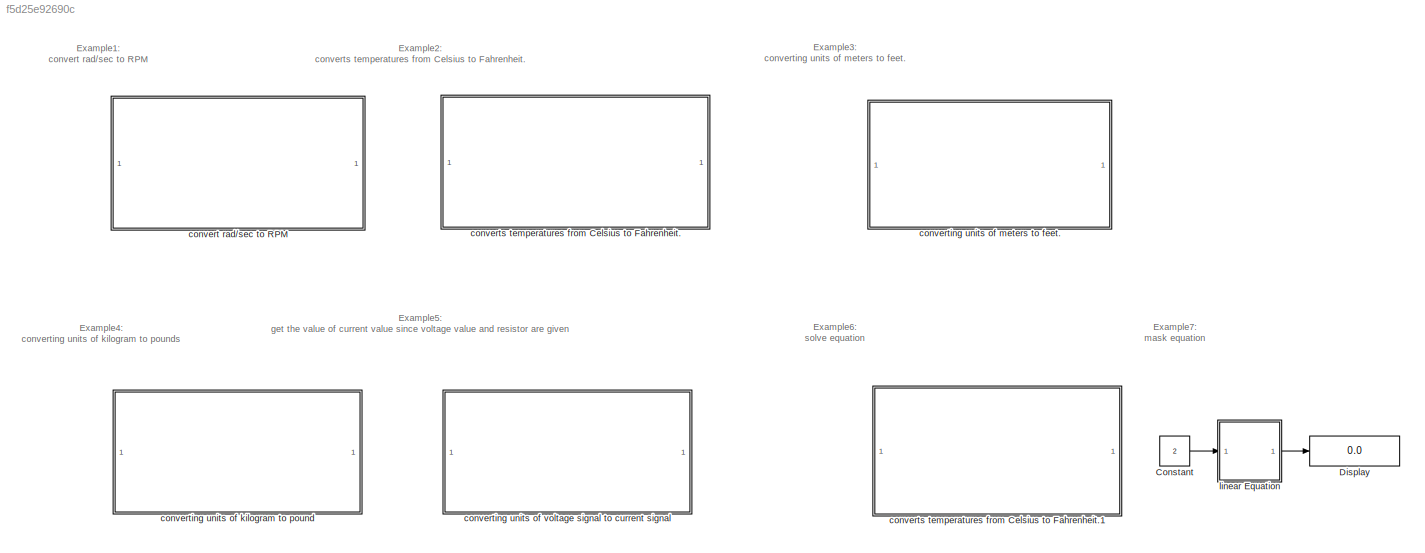
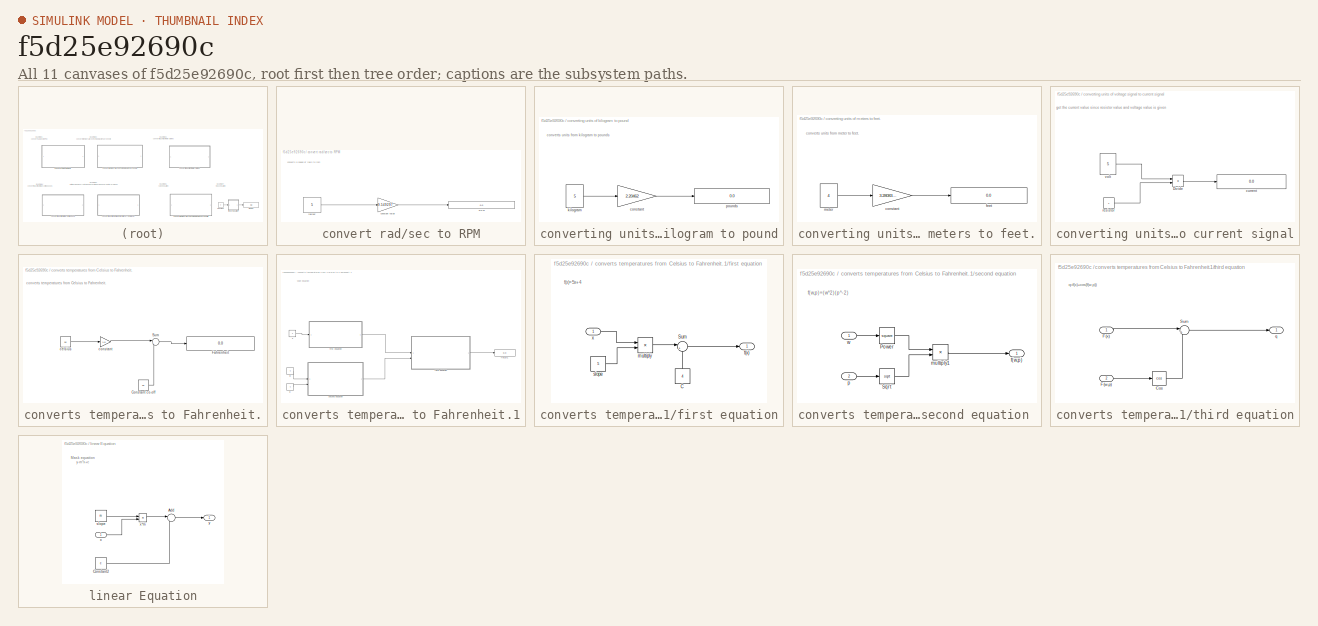
[diagram: thumbnail index - all 11 canvases of the model, root first then tree order]
MODEL slx_f5d25e92690c
KIND model
CONFIG AbsTol = auto
CONFIG EnableMultiTasking = off
CONFIG FixedStep = auto
CONFIG MaxStep = auto
CONFIG MinStep = auto
CONFIG RelTol = 1e-3
CONFIG SampleTimeConstraint = Unconstrained
CONFIG SolverName = VariableStepAuto
CONFIG StartTime = 0.0
CONFIG StopTime = 10.0
BLOCK [Constant] Constant
  Value = 2
BLOCK [Display] Display
  Decimation = 1
BLOCK [SubSystem] convert rad//sec to RPM
BLOCK [Display] convert rad//sec to RPM/RPM
  Decimation = 5
  Format = long
BLOCK [Gain] convert rad//sec to RPM/constant value
  Gain = 9.549297
BLOCK [Constant] convert rad//sec to RPM/rad//sec
  Value = 5
BLOCK [SubSystem] converting units of kilogram to pound
BLOCK [Gain] converting units of kilogram to pound/constant 
  Gain = 2.20462
BLOCK [Constant] converting units of kilogram to pound/kilogram
  Value = 5
BLOCK [Display] converting units of kilogram to pound/pounds
  Decimation = 1
  Format = long
BLOCK [SubSystem] converting units of meters to feet.
BLOCK [Gain] converting units of meters to feet./constant 
  Gain = 3.280839895
BLOCK [Display] converting units of meters to feet./feet
  Decimation = 1
  Format = long
BLOCK [Constant] converting units of meters to feet./meter
  Value = 4
BLOCK [SubSystem] converting units of voltage signal to current signal
BLOCK [Product] converting units of voltage signal to current signal/Divide
  Inputs = */
BLOCK [Display] converting units of voltage signal to current signal/current 
  Decimation = 1
  Format = long
BLOCK [Constant] converting units of voltage signal to current signal/resistor
BLOCK [Constant] converting units of voltage signal to current signal/volt
  Value = 5
BLOCK [SubSystem] converts temperatures from Celsius to Fahrenheit.
BLOCK [Constant] converts temperatures from Celsius to Fahrenheit./Constant co-off
  Value = 32
BLOCK [Display] converts temperatures from Celsius to Fahrenheit./Fahrenheit
  Decimation = 1
  Format = long
BLOCK [Sum] converts temperatures from Celsius to Fahrenheit./Sum
  Inputs = |++
BLOCK [Constant] converts temperatures from Celsius to Fahrenheit./celsius
  Value = 56
BLOCK [Gain] converts temperatures from Celsius to Fahrenheit./constant 
  Gain = 1.8
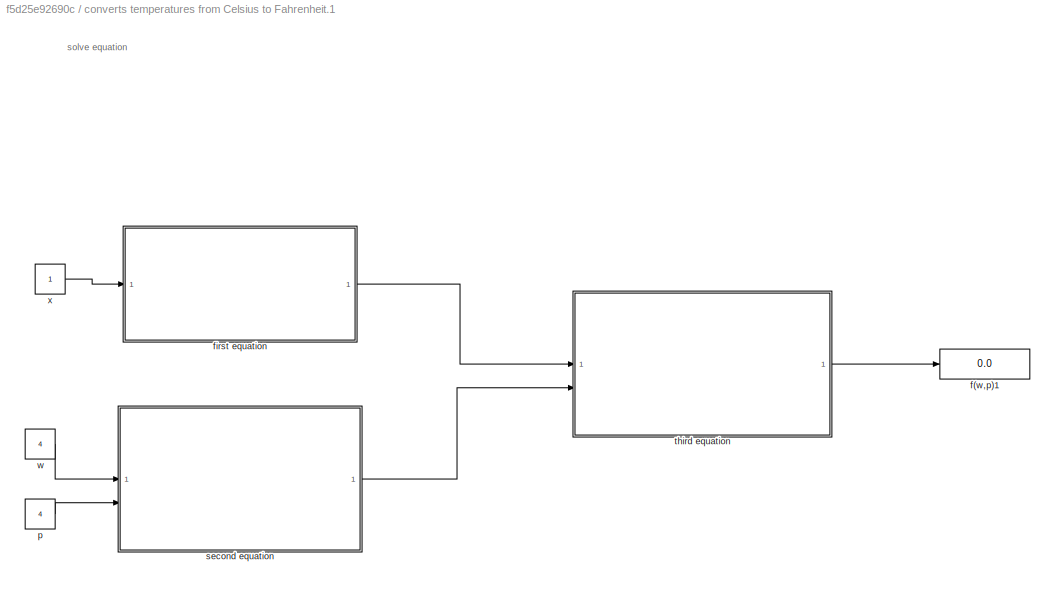
BLOCK [SubSystem] converts temperatures from Celsius to Fahrenheit.1
BLOCK [Display] converts temperatures from Celsius to Fahrenheit.1/f(w,p)1
  Decimation = 1
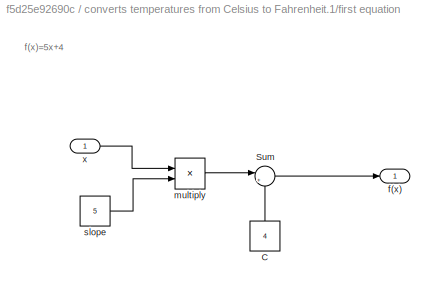
BLOCK [SubSystem] converts temperatures from Celsius to Fahrenheit.1/first equation
BLOCK [Constant] converts temperatures from Celsius to Fahrenheit.1/first equation/C
  NameLocation = right
  Value = 4
BLOCK [Sum] converts temperatures from Celsius to Fahrenheit.1/first equation/Sum
  Inputs = |++
BLOCK [Outport] converts temperatures from Celsius to Fahrenheit.1/first equation/f(x)
BLOCK [Product] converts temperatures from Celsius to Fahrenheit.1/first equation/multiply
BLOCK [Constant] converts temperatures from Celsius to Fahrenheit.1/first equation/slope
  Value = 5
BLOCK [Inport] converts temperatures from Celsius to Fahrenheit.1/first equation/x
BLOCK [Constant] converts temperatures from Celsius to Fahrenheit.1/p
  Value = 4
BLOCK [SubSystem] converts temperatures from Celsius to Fahrenheit.1/second equation 
BLOCK [Math] converts temperatures from Celsius to Fahrenheit.1/second equation /Power
  Operator = square
BLOCK [Sqrt] converts temperatures from Celsius to Fahrenheit.1/second equation /Sqrt
BLOCK [Outport] converts temperatures from Celsius to Fahrenheit.1/second equation /f(w,p)
BLOCK [Product] converts temperatures from Celsius to Fahrenheit.1/second equation /multiply1
BLOCK [Inport] converts temperatures from Celsius to Fahrenheit.1/second equation /p
  Port = 2
BLOCK [Inport] converts temperatures from Celsius to Fahrenheit.1/second equation /w
BLOCK [SubSystem] converts temperatures from Celsius to Fahrenheit.1/third equation
BLOCK [Trigonometry] converts temperatures from Celsius to Fahrenheit.1/third equation/Cos
  Operator = cos
BLOCK [Inport] converts temperatures from Celsius to Fahrenheit.1/third equation/F(w,p)
  Port = 2
BLOCK [Inport] converts temperatures from Celsius to Fahrenheit.1/third equation/F(x)
BLOCK [Sum] converts temperatures from Celsius to Fahrenheit.1/third equation/Sum
  Inputs = |++
BLOCK [Outport] converts temperatures from Celsius to Fahrenheit.1/third equation/q
BLOCK [Constant] converts temperatures from Celsius to Fahrenheit.1/w
  Value = 4
BLOCK [Constant] converts temperatures from Celsius to Fahrenheit.1/x
BLOCK [SubSystem] linear Equation
BLOCK [Sum] linear Equation/Add
  Inputs = |++
BLOCK [Constant] linear Equation/Constant2
  Value = c
BLOCK [Constant] linear Equation/slope
  Value = m
BLOCK [Inport] linear Equation/x
BLOCK [Product] linear Equation/x*m
BLOCK [Outport] linear Equation/y
ANNOTATION (root): Example1: convert rad/sec to RPM
ANNOTATION (root): Example2: converts temperatures from Celsius to Fahrenheit.
ANNOTATION (root): Example3: converting units of meters to feet.
ANNOTATION (root): Example4: converting units of kilogram to pounds
ANNOTATION (root): Example5: get the value of current value since voltage value and resistor are given
ANNOTATION (root): Example6: solve equation
ANNOTATION (root): Example7: mask equation
ANNOTATION convert rad//sec to RPM: converts a speed of rad/s to rpm
ANNOTATION converting units of kilogram to pound: converts units from kilogram to pounds
ANNOTATION converting units of meters to feet.: converts units from meter to feet.
ANNOTATION converting units of voltage signal to current signal: get the current value since resistor value and voltage value is given
ANNOTATION converts temperatures from Celsius to Fahrenheit.: converts temperatures from Celsius to Fahrenheit.
ANNOTATION converts temperatures from Celsius to Fahrenheit.1: solve equation
ANNOTATION converts temperatures from Celsius to Fahrenheit.1/first equation: f(x)=5x+4
ANNOTATION converts temperatures from Celsius to Fahrenheit.1/second equation : f(w,p)=(w^2)(p^-2)
ANNOTATION converts temperatures from Celsius to Fahrenheit.1/third equation: q=f(x)+cos(f(w,p))
ANNOTATION linear Equation: Mask equation y-m*x+c
LINE Constant:1 -> linear Equation:1
LINE convert rad//sec to RPM/constant value:1 -> convert rad//sec to RPM/RPM:1
LINE convert rad//sec to RPM/rad//sec:1 -> convert rad//sec to RPM/constant value:1
LINE converting units of kilogram to pound/constant :1 -> converting units of kilogram to pound/pounds:1
LINE converting units of kilogram to pound/kilogram:1 -> converting units of kilogram to pound/constant :1
LINE converting units of meters to feet./constant :1 -> converting units of meters to feet./feet:1
LINE converting units of meters to feet./meter:1 -> converting units of meters to feet./constant :1
LINE converting units of voltage signal to current signal/Divide:1 -> converting units of voltage signal to current signal/current :1
LINE converting units of voltage signal to current signal/resistor:1 -> converting units of voltage signal to current signal/Divide:2
LINE converting units of voltage signal to current signal/volt:1 -> converting units of voltage signal to current signal/Divide:1
LINE converts temperatures from Celsius to Fahrenheit./Constant co-off:1 -> converts temperatures from Celsius to Fahrenheit./Sum:2
LINE converts temperatures from Celsius to Fahrenheit./Sum:1 -> converts temperatures from Celsius to Fahrenheit./Fahrenheit:1
LINE converts temperatures from Celsius to Fahrenheit./celsius:1 -> converts temperatures from Celsius to Fahrenheit./constant :1
LINE converts temperatures from Celsius to Fahrenheit./constant :1 -> converts temperatures from Celsius to Fahrenheit./Sum:1
LINE converts temperatures from Celsius to Fahrenheit.1/first equation/C:1 -> converts temperatures from Celsius to Fahrenheit.1/first equation/Sum:2
LINE converts temperatures from Celsius to Fahrenheit.1/first equation/Sum:1 -> converts temperatures from Celsius to Fahrenheit.1/first equation/f(x):1
LINE converts temperatures from Celsius to Fahrenheit.1/first equation/multiply:1 -> converts temperatures from Celsius to Fahrenheit.1/first equation/Sum:1
LINE converts temperatures from Celsius to Fahrenheit.1/first equation/slope:1 -> converts temperatures from Celsius to Fahrenheit.1/first equation/multiply:2
LINE converts temperatures from Celsius to Fahrenheit.1/first equation/x:1 -> converts temperatures from Celsius to Fahrenheit.1/first equation/multiply:1
LINE converts temperatures from Celsius to Fahrenheit.1/first equation:1 -> converts temperatures from Celsius to Fahrenheit.1/third equation:1
LINE converts temperatures from Celsius to Fahrenheit.1/p:1 -> converts temperatures from Celsius to Fahrenheit.1/second equation :2
LINE converts temperatures from Celsius to Fahrenheit.1/second equation /Power:1 -> converts temperatures from Celsius to Fahrenheit.1/second equation /multiply1:1
LINE converts temperatures from Celsius to Fahrenheit.1/second equation /Sqrt:1 -> converts temperatures from Celsius to Fahrenheit.1/second equation /multiply1:2
LINE converts temperatures from Celsius to Fahrenheit.1/second equation /multiply1:1 -> converts temperatures from Celsius to Fahrenheit.1/second equation /f(w,p):1
LINE converts temperatures from Celsius to Fahrenheit.1/second equation /p:1 -> converts temperatures from Celsius to Fahrenheit.1/second equation /Sqrt:1
LINE converts temperatures from Celsius to Fahrenheit.1/second equation /w:1 -> converts temperatures from Celsius to Fahrenheit.1/second equation /Power:1
LINE converts temperatures from Celsius to Fahrenheit.1/second equation :1 -> converts temperatures from Celsius to Fahrenheit.1/third equation:2
LINE converts temperatures from Celsius to Fahrenheit.1/third equation/Cos:1 -> converts temperatures from Celsius to Fahrenheit.1/third equation/Sum:2
LINE converts temperatures from Celsius to Fahrenheit.1/third equation/F(w,p):1 -> converts temperatures from Celsius to Fahrenheit.1/third equation/Cos:1
LINE converts temperatures from Celsius to Fahrenheit.1/third equation/F(x):1 -> converts temperatures from Celsius to Fahrenheit.1/third equation/Sum:1
LINE converts temperatures from Celsius to Fahrenheit.1/third equation/Sum:1 -> converts temperatures from Celsius to Fahrenheit.1/third equation/q:1
LINE converts temperatures from Celsius to Fahrenheit.1/third equation:1 -> converts temperatures from Celsius to Fahrenheit.1/f(w,p)1:1
LINE converts temperatures from Celsius to Fahrenheit.1/w:1 -> converts temperatures from Celsius to Fahrenheit.1/second equation :1
LINE converts temperatures from Celsius to Fahrenheit.1/x:1 -> converts temperatures from Celsius to Fahrenheit.1/first equation:1
LINE linear Equation/Add:1 -> linear Equation/y:1
LINE linear Equation/Constant2:1 -> linear Equation/Add:2
LINE linear Equation/slope:1 -> linear Equation/x*m:1
LINE linear Equation/x*m:1 -> linear Equation/Add:1
LINE linear Equation/x:1 -> linear Equation/x*m:2
LINE linear Equation:1 -> Display:1
